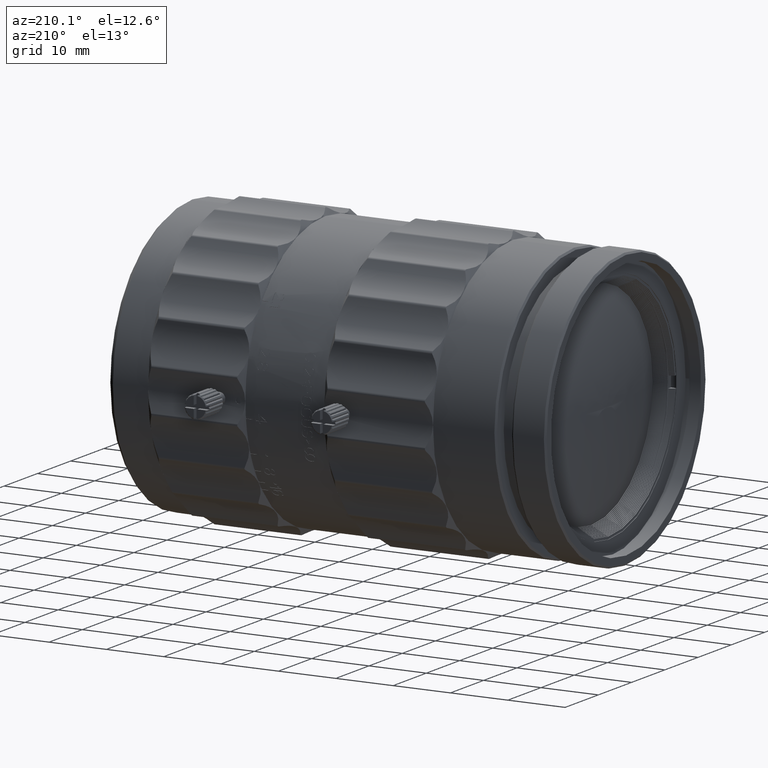
[diagram: clean part render]
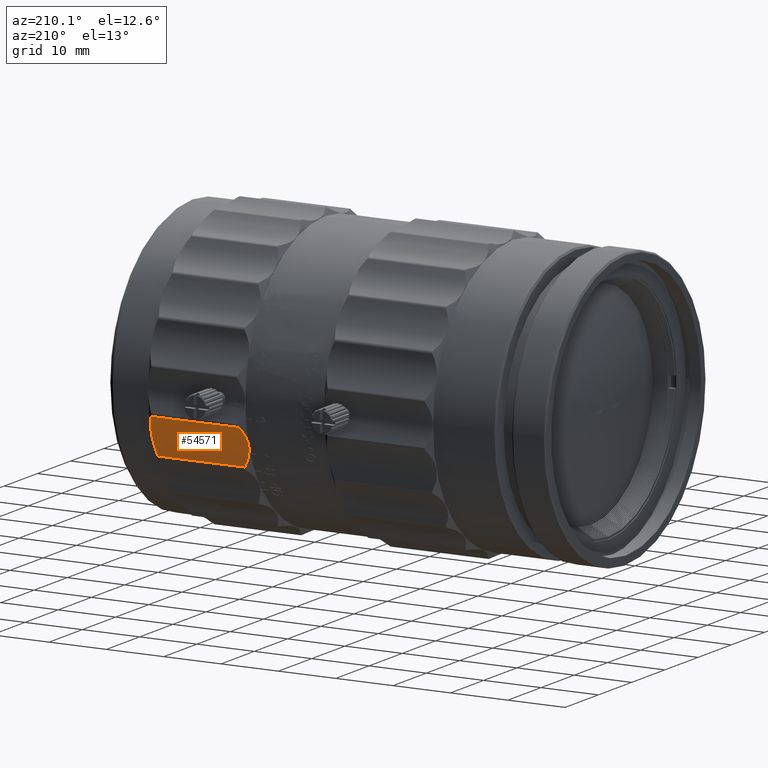
[diagram: same view with one face highlighted and labeled with its STEP entity id]
A machine part, auxiliary view. The second image highlights one B-rep face of the part: STEP entity #54571.
In plain terms, the highlighted cylindrical surface (partial cylindrical patch) has radius 9 mm, axis along (1, -0, -0).
Its self-contained STEP definition (entity closure, byte-faithful):
#278 = CARTESIAN_POINT ( 'NONE',  ( 48.12613367085779004, 31.54538303557999512, -9.730427549124000208 ) ) ;
#3687 = EDGE_CURVE ( 'NONE', #77537, #85765, #33500, .T. ) ;
#6489 = CARTESIAN_POINT ( 'NONE',  ( 49.13310385452282247, 24.59109537120623301, -4.017480605396925419 ) ) ;
#7391 = CARTESIAN_POINT ( 'NONE',  ( 65.03770737770946653, 22.61849660576915966, -8.548319945408847431 ) ) ;
#8419 = CARTESIAN_POINT ( 'NONE',  ( 48.39429262014967748, 22.61849660692169905, -8.548319936352331894 ) ) ;
#8839 = CARTESIAN_POINT ( 'NONE',  ( 64.43614215033960591, 24.41750953481839659, -4.228773516639600771 ) ) ;
#9953 = DIRECTION ( 'NONE',  ( 1.000000000000000000, 0.000000000000000000, 0.000000000000000000 ) ) ;
#14363 = CARTESIAN_POINT ( 'NONE',  ( 48.85891171645866393, 22.53252705118980259, -9.989074681128627731 ) ) ;
#15086 = DIRECTION ( 'NONE',  ( 1.000000000000000000, -1.136260149967735708E-16, -3.683677975899836974E-16 ) ) ;
#15102 = AXIS2_PLACEMENT_3D ( 'NONE', #278, #15086, #96348 ) ;
#15424 = CARTESIAN_POINT ( 'NONE',  ( 64.29889698321365188, 24.59109562949705463, -4.017480319378084808 ) ) ;
#17338 = LINE ( 'NONE', #93639, #57259 ) ;
#18175 = CARTESIAN_POINT ( 'NONE',  ( 65.03932312596667487, 23.50047137839397138, -5.685008552718604946 ) ) ;
#19172 = CARTESIAN_POINT ( 'NONE',  ( 64.29889692406041490, 22.58125894411641710, -10.53322221334053665 ) ) ;
#21021 = CYLINDRICAL_SURFACE ( 'NONE', #15102, 9.000000000002808420 ) ;
#22249 = CARTESIAN_POINT ( 'NONE',  ( 48.87064230582581814, 24.25091917569435651, -4.451108003279460767 ) ) ;
#22729 = CARTESIAN_POINT ( 'NONE',  ( 48.22833438888709878, 22.85397454917315585, -7.374282941043381001 ) ) ;
#29042 = VERTEX_POINT ( 'NONE', #58458 ) ;
#29135 = CARTESIAN_POINT ( 'NONE',  ( 48.24902061540177556, 23.13783378947417546, -6.505013544842469742 ) ) ;
#30041 = CARTESIAN_POINT ( 'NONE',  ( 65.20431870934827145, 23.03232623544991853, -6.794467261813718295 ) ) ;
#32924 = CARTESIAN_POINT ( 'NONE',  ( 64.29889698321365188, 24.59109562949705463, -4.017480319378084808 ) ) ;
#33500 = B_SPLINE_CURVE_WITH_KNOTS ( 'NONE', 3,
 ( #59102, #89162, #74876, #7391, #37432, #67461, #97493, #30041, #60555, #75836, #18175, #55573, #69388, #83716, #8839, #32924 ),
 .UNSPECIFIED., .F., .F.,
 ( 4, 2, 2, 2, 2, 2, 2, 4 ),
 ( 3.469446951953614189E-18, 0.001815624395132721738, 0.002723436592699078271, 0.003631248790265431767, 0.004539060987831786131, 0.005446873185398140062, 0.006354685382964494859, 0.007262497580530848790 ),
 .UNSPECIFIED. ) ;
#37432 = CARTESIAN_POINT ( 'NONE',  ( 65.09962823718211666, 22.66266652884393196, -8.251697900181310885 ) ) ;
#37967 = CARTESIAN_POINT ( 'NONE',  ( 48.63337685369287300, 22.53123874806324878, -9.427241736423246365 ) ) ;
#38544 = CARTESIAN_POINT ( 'NONE',  ( 59.24363230218000353, 24.59110054589275052, -4.017484407910227873 ) ) ;
#43540 = VERTEX_POINT ( 'NONE', #57756 ) ;
#44379 = CARTESIAN_POINT ( 'NONE',  ( 48.55073824395256565, 23.78092176508669198, -5.169817983716741949 ) ) ;
#44864 = CARTESIAN_POINT ( 'NONE',  ( 48.33237176085130216, 22.66266653050806923, -8.251697889913728545 ) ) ;
#45426 = CARTESIAN_POINT ( 'NONE',  ( 54.18836769781999152, 24.59110054589275052, -4.017484407910227873 ) ) ;
#46393 = CARTESIAN_POINT ( 'NONE',  ( 49.13310385452282247, 24.59109537120623301, -4.017480605396925419 ) ) ;
#51040 = FACE_OUTER_BOUND ( 'NONE', #81539, .T. ) ;
#51577 = ORIENTED_EDGE ( 'NONE', *, *, #63406, .T. ) ;
#51774 = CARTESIAN_POINT ( 'NONE',  ( 49.13310307593906145, 22.58125894411573498, -10.53322221334084929 ) ) ;
#52259 = CARTESIAN_POINT ( 'NONE',  ( 48.99585786251209640, 24.41750955164399883, -4.228773494801392197 ) ) ;
#54571 = ADVANCED_FACE ( 'NONE', ( #51040 ), #21021, .F. ) ;
#55573 = CARTESIAN_POINT ( 'NONE',  ( 64.88126176354423080, 23.78092175286685261, -5.169818004594493921 ) ) ;
#57259 = VECTOR ( 'NONE', #9953, 1000.000000000000000 ) ;
#57756 = CARTESIAN_POINT ( 'NONE',  ( 49.13310385452282247, 24.59109537120623301, -4.017480605396925419 ) ) ;
#58458 = CARTESIAN_POINT ( 'NONE',  ( 49.13310307593906145, 22.58125894411573498, -10.53322221334084929 ) ) ;
#59102 = CARTESIAN_POINT ( 'NONE',  ( 64.29889692406041490, 22.58125894411641710, -10.53322221334053665 ) ) ;
#59796 = B_SPLINE_CURVE_WITH_KNOTS ( 'NONE', 3,
 ( #51774, #14363, #37967, #8419, #44864, #81840, #22729, #97087, #29135, #60140, #60625, #44379, #74459, #22249, #52259, #6489 ),
 .UNSPECIFIED., .F., .F.,
 ( 4, 2, 2, 2, 2, 2, 2, 4 ),
 ( 1.734723475976807094E-18, 0.001815624403055846351, 0.002723436604583768551, 0.003631248806111687499, 0.004539061007639607313, 0.005446873209167527562, 0.006354685410695446943, 0.007262497612223367191 ),
 .UNSPECIFIED. ) ;
#60140 = CARTESIAN_POINT ( 'NONE',  ( 48.33162901857886595, 23.37153668523812655, -5.951748459056557472 ) ) ;
#60555 = CARTESIAN_POINT ( 'NONE',  ( 65.18297938625798338, 23.13783378286433745, -6.505013562176065633 ) ) ;
#60625 = CARTESIAN_POINT ( 'NONE',  ( 48.39267687895218018, 23.50047138820338333, -5.685008533128387498 ) ) ;
#63406 = EDGE_CURVE ( 'NONE', #29042, #43540, #59796, .T. ) ;
#63522 = CARTESIAN_POINT ( 'NONE',  ( 64.29889698321365188, 24.59109562949705463, -4.017480319378084808 ) ) ;
#67136 = B_SPLINE_CURVE_WITH_KNOTS ( 'NONE', 3,
 ( #15424, #38544, #45426, #46393 ),
 .UNSPECIFIED., .F., .F.,
 ( 4, 4 ),
 ( 0.000000000000000000, 1.000000000000000000 ),
 .UNSPECIFIED. ) ;
#67461 = CARTESIAN_POINT ( 'NONE',  ( 65.18229582822928592, 22.78031584705414048, -7.665750553966938163 ) ) ;
#68602 = ORIENTED_EDGE ( 'NONE', *, *, #3687, .F. ) ;
#69001 = EDGE_CURVE ( 'NONE', #85765, #43540, #67136, .T. ) ;
#69388 = CARTESIAN_POINT ( 'NONE',  ( 64.78372474700015005, 23.93302733861601439, -4.920806086602123486 ) ) ;
#74459 = CARTESIAN_POINT ( 'NONE',  ( 48.64827526184648576, 23.93302735202379594, -4.920806065333044543 ) ) ;
#74876 = CARTESIAN_POINT ( 'NONE',  ( 64.79862314432884318, 22.53123874808360938, -9.427241741323189927 ) ) ;
#75836 = CARTESIAN_POINT ( 'NONE',  ( 65.10037098516872334, 23.37153667655024591, -5.951748477938537008 ) ) ;
#77537 = VERTEX_POINT ( 'NONE', #19172 ) ;
#78792 = ORIENTED_EDGE ( 'NONE', *, *, #69001, .F. ) ;
#81420 = EDGE_CURVE ( 'NONE', #29042, #77537, #17338, .T. ) ;
#81539 = EDGE_LOOP ( 'NONE', ( #84751, #51577, #78792, #68602 ) ) ;
#81840 = CARTESIAN_POINT ( 'NONE',  ( 48.24970417049054561, 22.78031585001065551, -7.665750541221574288 ) ) ;
#83716 = CARTESIAN_POINT ( 'NONE',  ( 64.56135770567217946, 24.25091916001774806, -4.451108024983740918 ) ) ;
#84751 = ORIENTED_EDGE ( 'NONE', *, *, #81420, .F. ) ;
#85765 = VERTEX_POINT ( 'NONE', #63522 ) ;
#89162 = CARTESIAN_POINT ( 'NONE',  ( 64.57308828234481268, 22.53252705140246448, -9.989074683503220697 ) ) ;
#93639 = CARTESIAN_POINT ( 'NONE',  ( 56.71869927860999638, 22.58125894411649170, -10.53322221334031283 ) ) ;
#96348 = DIRECTION ( 'NONE',  ( 0.000000000000000000, 0.000000000000000000, -1.000000000000000000 ) ) ;
#97087 = CARTESIAN_POINT ( 'NONE',  ( 48.22768129136903070, 23.03232624105210746, -6.794467245421878410 ) ) ;
#97493 = CARTESIAN_POINT ( 'NONE',  ( 65.20366561036141206, 22.85397454543572238, -7.374282955014370700 ) ) ;